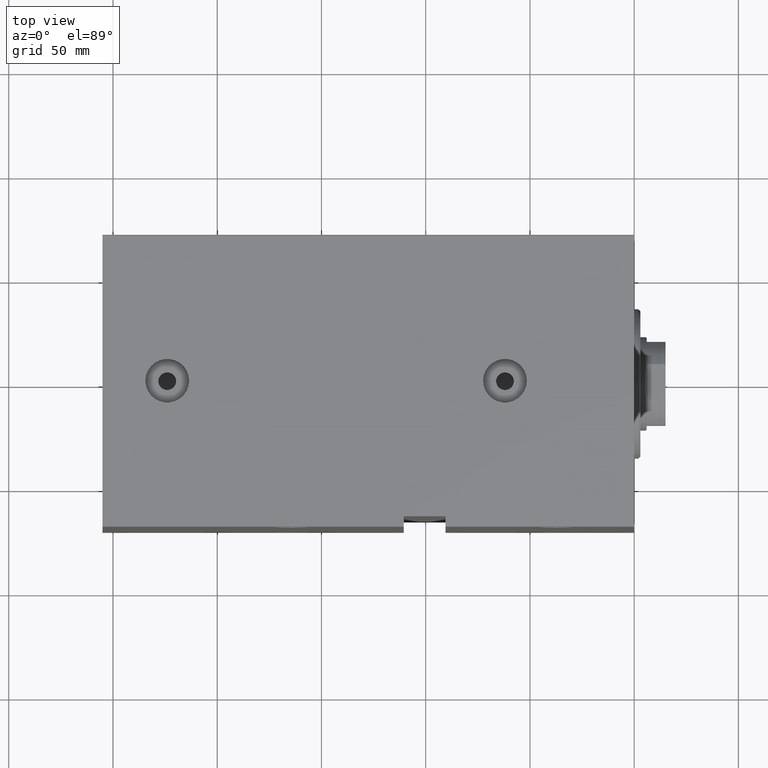
[diagram: clean part render]
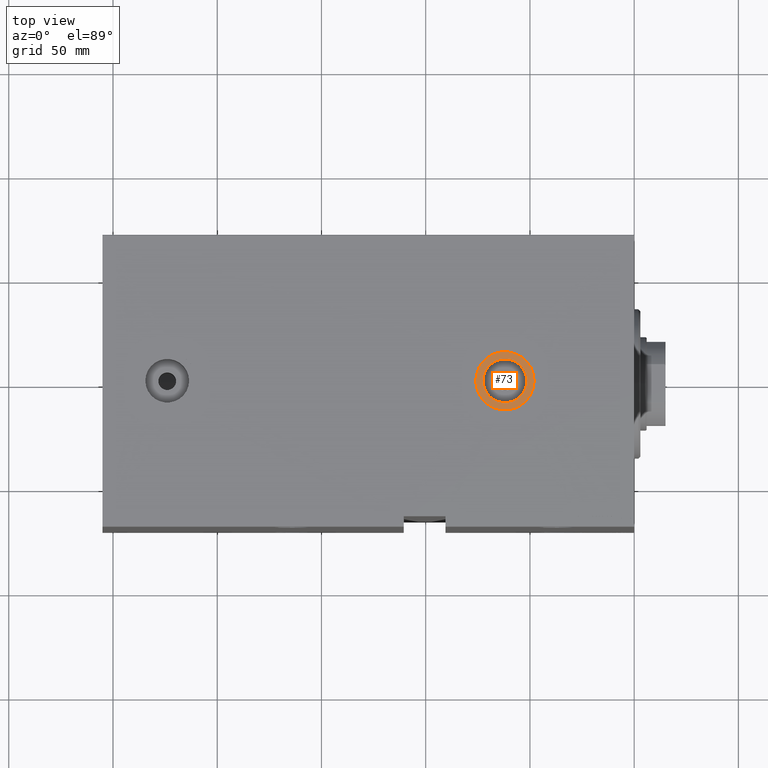
[diagram: same view with one face highlighted and labeled with its STEP entity id]
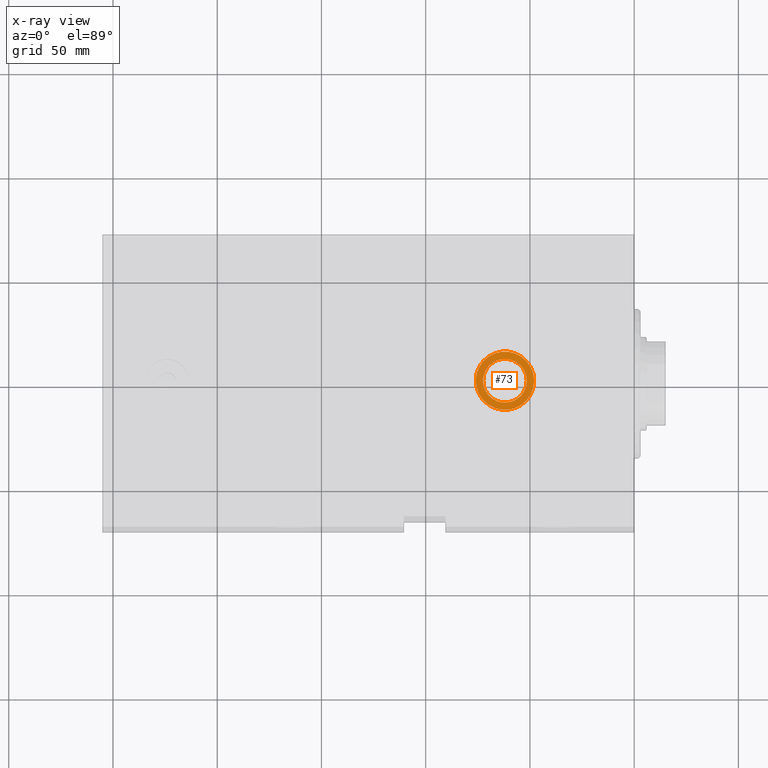
[diagram: x-ray of the same camera — body ghosted, the highlighted face saturated]
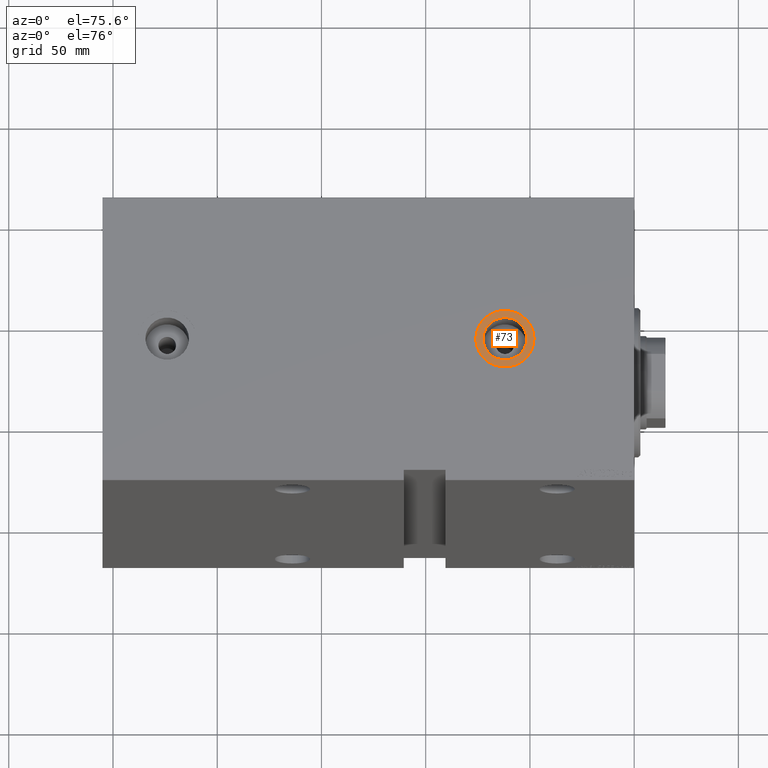
[diagram: same view with one face highlighted and labeled with its STEP entity id]
A machine part, top view. The second image highlights one B-rep face of the part: STEP entity #73.
The next image is the same camera in x-ray: the body ghosted, the highlighted face saturated — about 0% of this face is hidden behind the body in this view.
A second angle (auxiliary view) of the same face is appended — the face is thin or edge-on in the first view.
In plain terms, the highlighted planar face has unit normal (0, 0, 1).
Its self-contained STEP definition (entity closure, byte-faithful):
#73 = ADVANCED_FACE ( 'NONE', ( #9107, #37332 ), #19347, .T. ) ;
#318 = EDGE_CURVE ( 'NONE', #26212, #37179, #21880, .T. ) ;
#2718 = DIRECTION ( 'NONE',  ( 0.000000000000000000, 0.000000000000000000, 1.000000000000000000 ) ) ;
#3400 = EDGE_LOOP ( 'NONE', ( #17959, #19752 ) ) ;
#4519 = AXIS2_PLACEMENT_3D ( 'NONE', #13179, #2718, #40974 ) ;
#5440 = ORIENTED_EDGE ( 'NONE', *, *, #26005, .F. ) ;
#6272 = AXIS2_PLACEMENT_3D ( 'NONE', #42359, #10929, #7741 ) ;
#7741 = DIRECTION ( 'NONE',  ( 1.000000000000000000, 0.000000000000000000, 0.000000000000000000 ) ) ;
#8375 = DIRECTION ( 'NONE',  ( 1.000000000000000000, 0.000000000000000000, 0.000000000000000000 ) ) ;
#9107 = FACE_BOUND ( 'NONE', #22289, .T. ) ;
#10105 = CIRCLE ( 'NONE', #37740, 10.48000000000000398 ) ;
#10929 = DIRECTION ( 'NONE',  ( 0.000000000000000000, 0.000000000000000000, 1.000000000000000000 ) ) ;
#13179 = CARTESIAN_POINT ( 'NONE',  ( 62.00000000000000000, -2.527739922137633059E-14, 84.90000000000000568 ) ) ;
#14459 = CARTESIAN_POINT ( 'NONE',  ( 62.00000000000000000, -2.527739922137632744E-14, 84.90000000000000568 ) ) ;
#15341 = AXIS2_PLACEMENT_3D ( 'NONE', #39567, #32293, #8375 ) ;
#16121 = CARTESIAN_POINT ( 'NONE',  ( 48.00000000000000000, -2.356289370257003852E-14, 84.90000000000000568 ) ) ;
#17959 = ORIENTED_EDGE ( 'NONE', *, *, #318, .T. ) ;
#18416 = EDGE_CURVE ( 'NONE', #29862, #35904, #28100, .T. ) ;
#19347 = PLANE ( 'NONE',  #4519 ) ;
#19456 = CARTESIAN_POINT ( 'NONE',  ( 76.00000000000000000, -2.527739922137633059E-14, 84.90000000000000568 ) ) ;
#19752 = ORIENTED_EDGE ( 'NONE', *, *, #20327, .T. ) ;
#20327 = EDGE_CURVE ( 'NONE', #37179, #26212, #29614, .T. ) ;
#21476 = CARTESIAN_POINT ( 'NONE',  ( 62.00000000000000000, -2.527739922137633059E-14, 84.90000000000000568 ) ) ;
#21880 = CIRCLE ( 'NONE', #15341, 13.99999999999999822 ) ;
#22289 = EDGE_LOOP ( 'NONE', ( #5440, #35374 ) ) ;
#22327 = AXIS2_PLACEMENT_3D ( 'NONE', #21476, #35820, #38567 ) ;
#26005 = EDGE_CURVE ( 'NONE', #35904, #29862, #10105, .T. ) ;
#26212 = VERTEX_POINT ( 'NONE', #19456 ) ;
#28100 = CIRCLE ( 'NONE', #6272, 10.48000000000000398 ) ;
#29614 = CIRCLE ( 'NONE', #22327, 13.99999999999999822 ) ;
#29668 = CARTESIAN_POINT ( 'NONE',  ( 72.48000000000000398, -2.527739922137632744E-14, 84.90000000000000568 ) ) ;
#29862 = VERTEX_POINT ( 'NONE', #37498 ) ;
#32293 = DIRECTION ( 'NONE',  ( 0.000000000000000000, 0.000000000000000000, 1.000000000000000000 ) ) ;
#35374 = ORIENTED_EDGE ( 'NONE', *, *, #18416, .F. ) ;
#35820 = DIRECTION ( 'NONE',  ( 0.000000000000000000, 0.000000000000000000, 1.000000000000000000 ) ) ;
#35904 = VERTEX_POINT ( 'NONE', #29668 ) ;
#37179 = VERTEX_POINT ( 'NONE', #16121 ) ;
#37332 = FACE_OUTER_BOUND ( 'NONE', #3400, .T. ) ;
#37498 = CARTESIAN_POINT ( 'NONE',  ( 51.51999999999999602, -2.399396937586990511E-14, 84.90000000000000568 ) ) ;
#37740 = AXIS2_PLACEMENT_3D ( 'NONE', #14459, #38155, #39051 ) ;
#38155 = DIRECTION ( 'NONE',  ( 0.000000000000000000, 0.000000000000000000, 1.000000000000000000 ) ) ;
#38567 = DIRECTION ( 'NONE',  ( 1.000000000000000000, 0.000000000000000000, 0.000000000000000000 ) ) ;
#39051 = DIRECTION ( 'NONE',  ( 1.000000000000000000, 0.000000000000000000, 0.000000000000000000 ) ) ;
#39567 = CARTESIAN_POINT ( 'NONE',  ( 62.00000000000000000, -2.527739922137633059E-14, 84.90000000000000568 ) ) ;
#40974 = DIRECTION ( 'NONE',  ( 1.000000000000000000, 0.000000000000000000, -0.000000000000000000 ) ) ;
#42359 = CARTESIAN_POINT ( 'NONE',  ( 62.00000000000000000, -2.527739922137632744E-14, 84.90000000000000568 ) ) ;